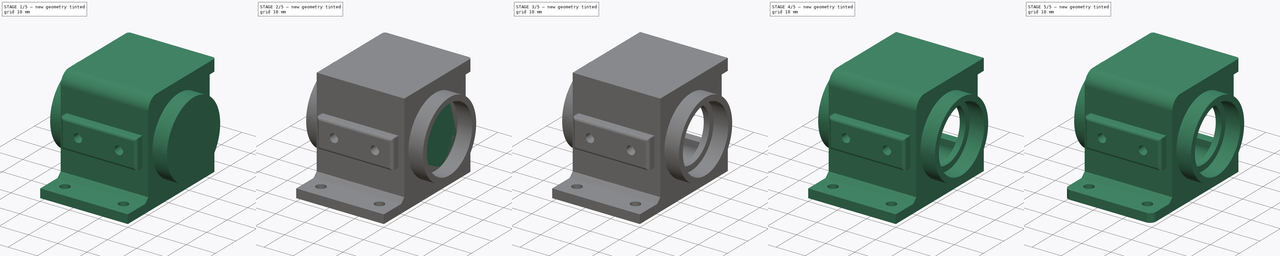
[diagram: build sequence overview — one tinted view per stage of 5, left to right]
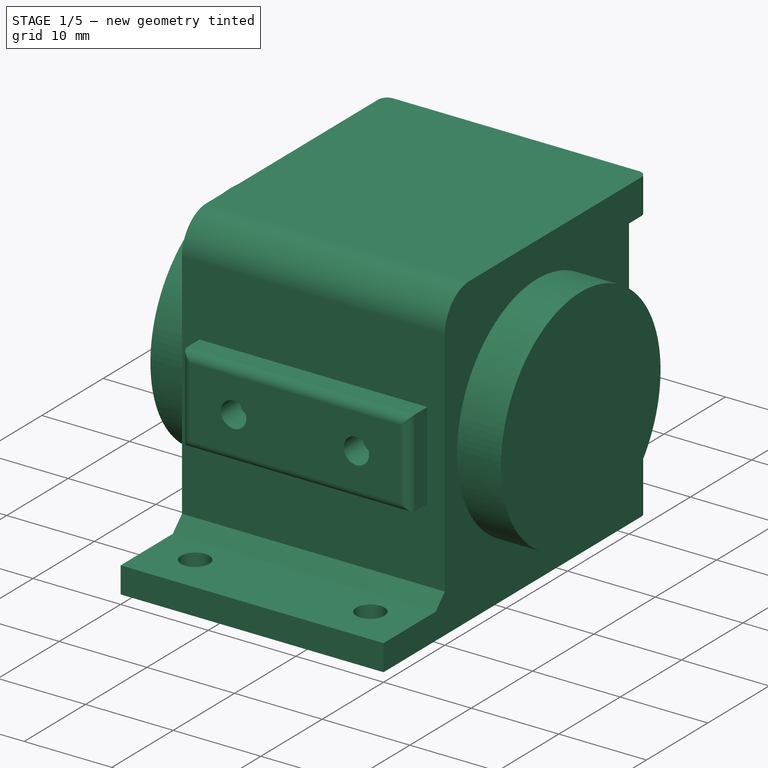
[diagram: stage 1 of 5 — iso view after this stage's code; geometry added in this stage tinted green]
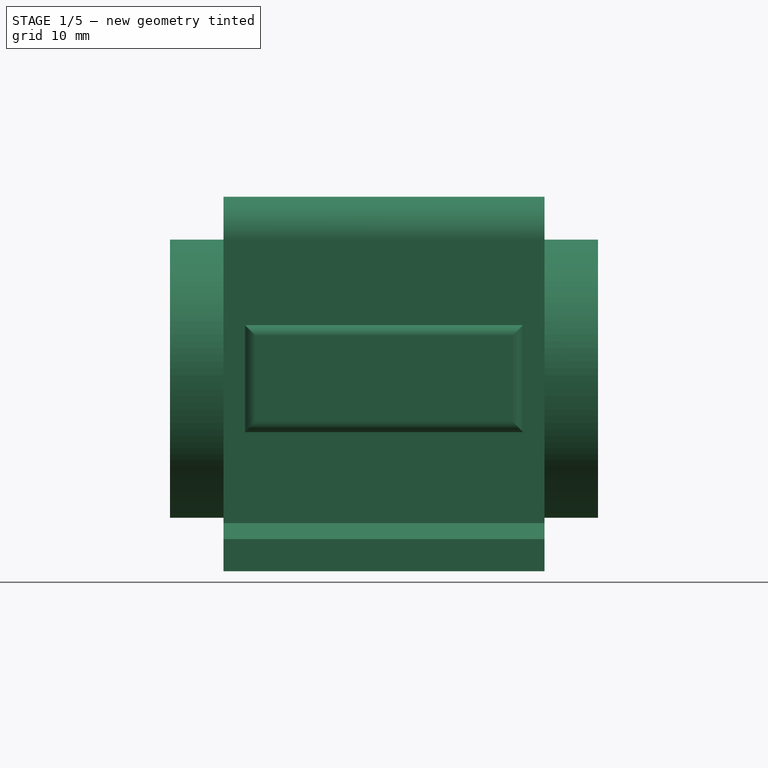
[diagram: stage 1 of 5 — front view after this stage's code; geometry added in this stage tinted green]
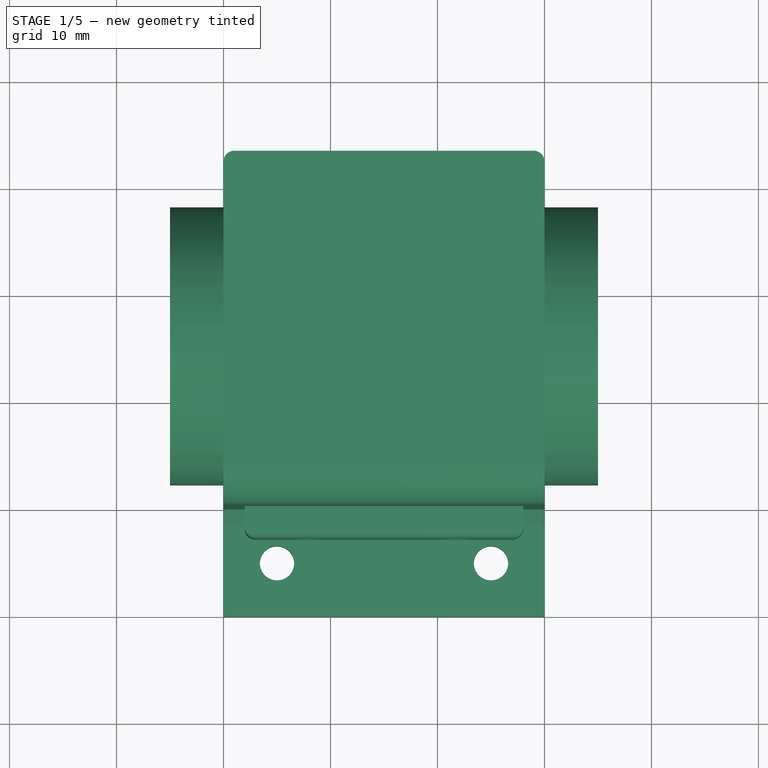
[diagram: stage 1 of 5 — top view after this stage's code; geometry added in this stage tinted green]
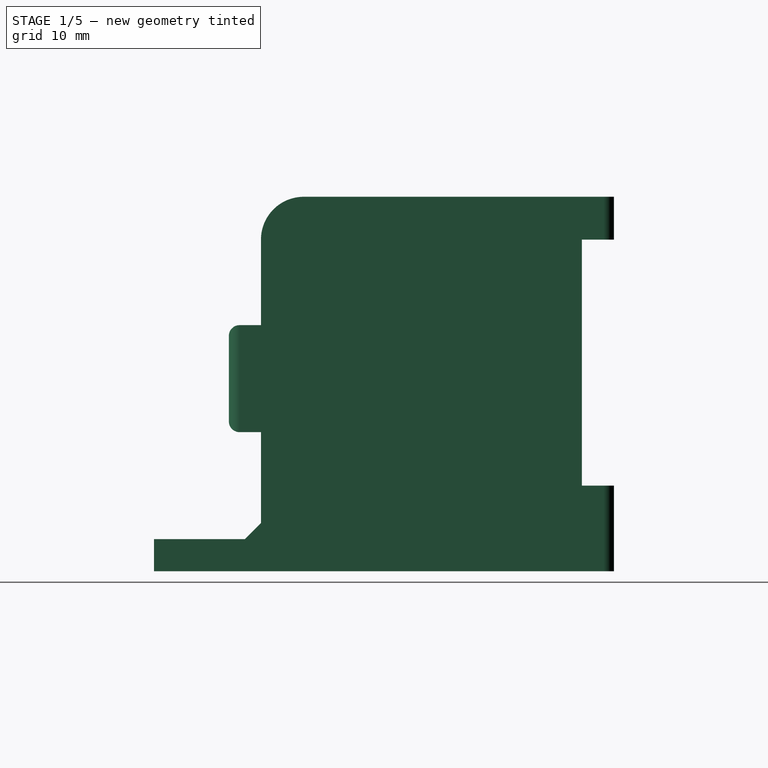
[diagram: stage 1 of 5 — right view after this stage's code; geometry added in this stage tinted green]
FCSTD DOCUMENT  (FreeCAD 0.14R3669 (Git) (Packman))
Label: lightbox2
License: CC-BY 3.0
LicenseURL: http://creativecommons.org/licenses/by/3.0/
objects: PartDesign::Fillet×8, Sketcher::SketchObject×6, PartDesign::Pocket×5, Part::Box×4, Part::MultiFuse×3, Part::Cylinder×1, PartDesign::Chamfer×1, Part::Feature×1, PartDesign::Pad×1
note: 36 computed .brp shape members not serialized (recipe doc carries the construction recipe); baked Part::Feature solids carry a one-line shape summary decoded from their .brp

FEATURE [Part::Cylinder] Cylinder
  Angle = 360
  Height = 40
  Placement = pos=(-5,15,18) rot=(0,1,0;1.5708rad)
  Radius = 13
FEATURE [Part::Box] Box003  label="Cube003"
  Height = 3
  Length = 30
  Placement = pos=(0,-10,0) rot=(0,0,1;0rad)
  Width = 10
FEATURE [Sketcher::SketchObject] Sketch004
  ExternalGeometry = -> [Box003]
  Placement = pos=(0,-10,3) rot=(0,0,1;0rad)
  Support = -> Box003 [Face6]
  sketch-geometry (2):
    g0: Circle CenterX=5 CenterY=5 CenterZ=0 NormalX=0 NormalY=0 NormalZ=1 Radius=1.6
    g1: Circle CenterX=25 CenterY=5 CenterZ=0 NormalX=0 NormalY=0 NormalZ=1 Radius=1.6
  constraints (6):
    c: Equal(g0,g1)
    c: Radius(g0) = 1.6
    c: DistanceX(g-1,g0) = 5
    c: DistanceY(g-1,g0) = 5
    c: DistanceX(g1,g-3) = 5
    c: DistanceY(g1,g-3) = -5
FEATURE [PartDesign::Pocket] Pocket004
  Length = 5
  Placement = pos=(0,-10,0) rot=(0,0,1;0rad)
  Sketch = -> Sketch004
  Type = 1
FEATURE [Part::Feature] Fillet006001  label="Fillet007"
  shape: bbox 40 x 43 x 35 mm, 62 faces (baked)
FEATURE [Sketcher::SketchObject] Sketch005
  ExternalGeometry = -> [Fillet006001]
  Placement = pos=(0,0,0) rot=(1,0,0;1.5708rad)
  Support = -> Fillet006001 [Face51]
  sketch-geometry (11):
    g0: LineSegment StartX=2 StartY=23 StartZ=0 EndX=28 EndY=23 EndZ=0
    g1: LineSegment StartX=28 StartY=23 StartZ=0 EndX=28 EndY=13 EndZ=0
    g2: LineSegment StartX=28 StartY=13 StartZ=0 EndX=2 EndY=13 EndZ=0
    g3: LineSegment StartX=2 StartY=13 StartZ=0 EndX=2 EndY=23 EndZ=0
    g4: Circle CenterX=8 CenterY=18 CenterZ=0 NormalX=0 NormalY=0 NormalZ=1 Radius=1.45
    g5: Circle CenterX=22 CenterY=18 CenterZ=0 NormalX=0 NormalY=0 NormalZ=1 Radius=1.45
    g6: LineSegment [constr] StartX=8 StartY=18 StartZ=0 EndX=22 EndY=18 EndZ=0
    g7: LineSegment [constr] StartX=8 StartY=18 StartZ=0 EndX=2 EndY=23 EndZ=0
    g8: LineSegment [constr] StartX=8 StartY=18 StartZ=0 EndX=2 EndY=13 EndZ=0
    g9: LineSegment [constr] StartX=22 StartY=18 StartZ=0 EndX=28 EndY=23 EndZ=0
    g10: LineSegment [constr] StartX=28 StartY=13 StartZ=0 EndX=22 EndY=18 EndZ=0
  constraints (28):
    c: Coincident(g0,g1)
    c: Coincident(g1,g2)
    c: Coincident(g2,g3)
    c: Coincident(g3,g0)
    c: Horizontal(g0)
    c: Horizontal(g2)
    c: Vertical(g1)
    c: Vertical(g3)
    c: Equal(g5,g4)
    c: Radius(g4) = 1.45
    c: Coincident(g6,g4)
    c: Coincident(g6,g5)
    c: Coincident(g7,g4)
    c: Coincident(g7,g0)
    c: Coincident(g8,g4)
    c: Coincident(g8,g2)
    c: Coincident(g9,g5)
    c: Coincident(g9,g0)
    c: Coincident(g10,g1)
    c: Coincident(g10,g9)
    c: Equal(g8,g7)
    c: Equal(g10,g9)
    c: Equal(g9,g7)
    c: DistanceY(g-1,g4) = 18
    c: DistanceX(g-1,g4) = 8
    c: DistanceX(g5,g-3) = 8
    c: DistanceY(g1) = -10
    c: DistanceX(g4,g2) = -6
FEATURE [PartDesign::Pad] Pad
  Length = 3
  Length2 = 100
  Sketch = -> Sketch005
  Type = 0
FEATURE [PartDesign::Fillet] Fillet006002
  Base = -> Pad [Edge3,Edge1,Edge4,Edge2]
  Radius = 1
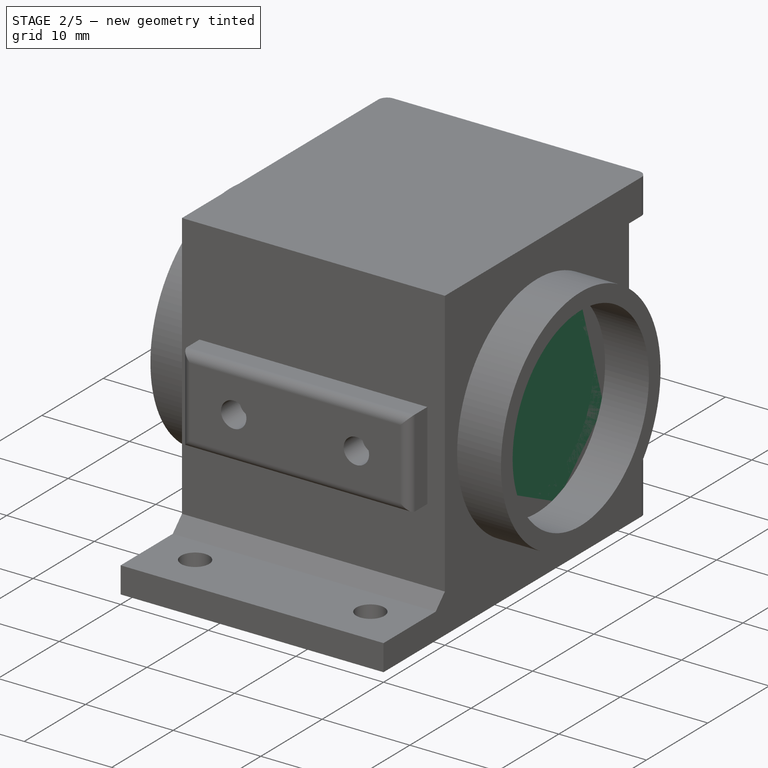
[diagram: stage 2 of 5 — iso view after this stage's code; geometry added in this stage tinted green]
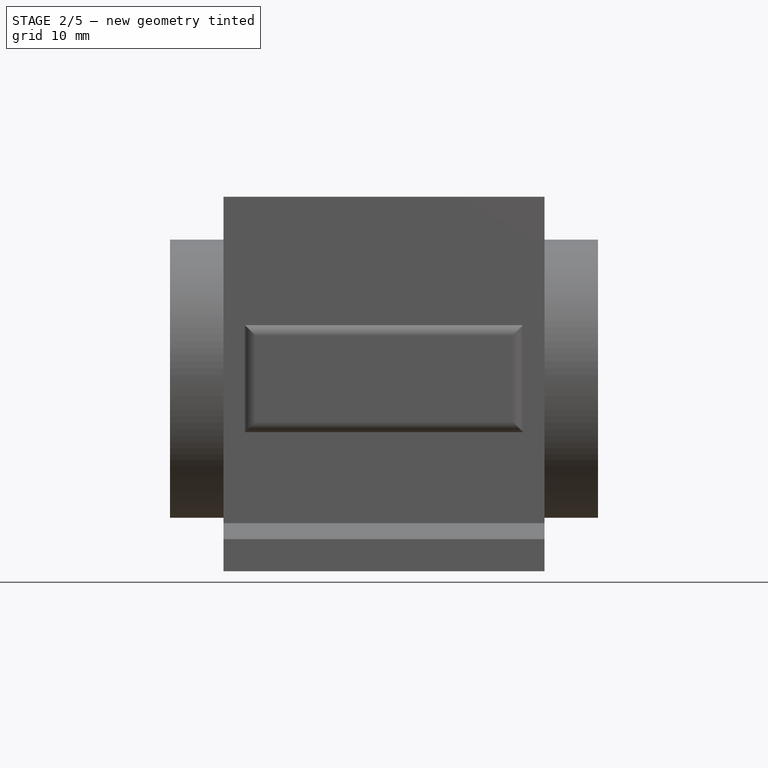
[diagram: stage 2 of 5 — front view after this stage's code; geometry added in this stage tinted green]
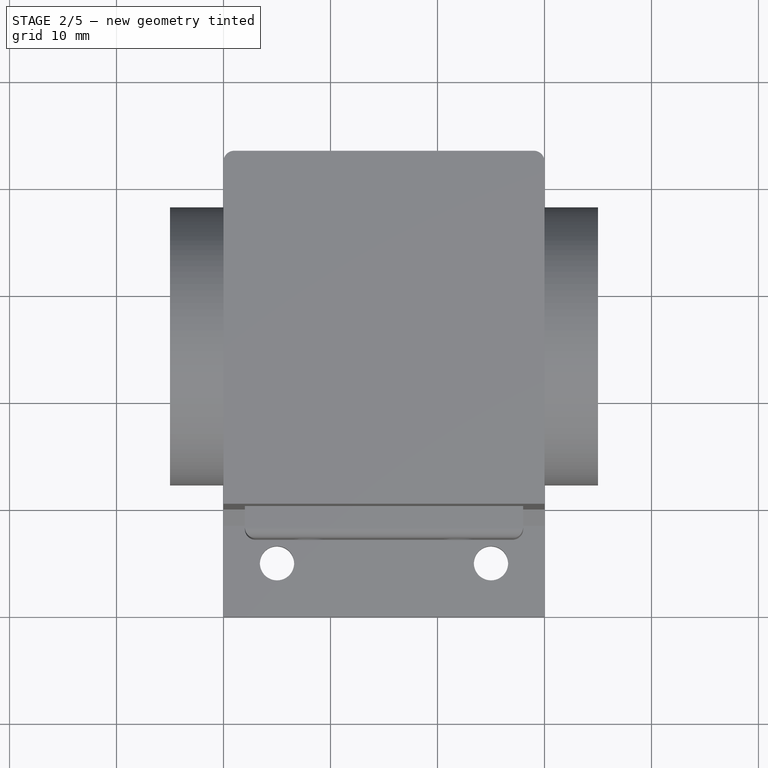
[diagram: stage 2 of 5 — top view after this stage's code; geometry added in this stage tinted green]
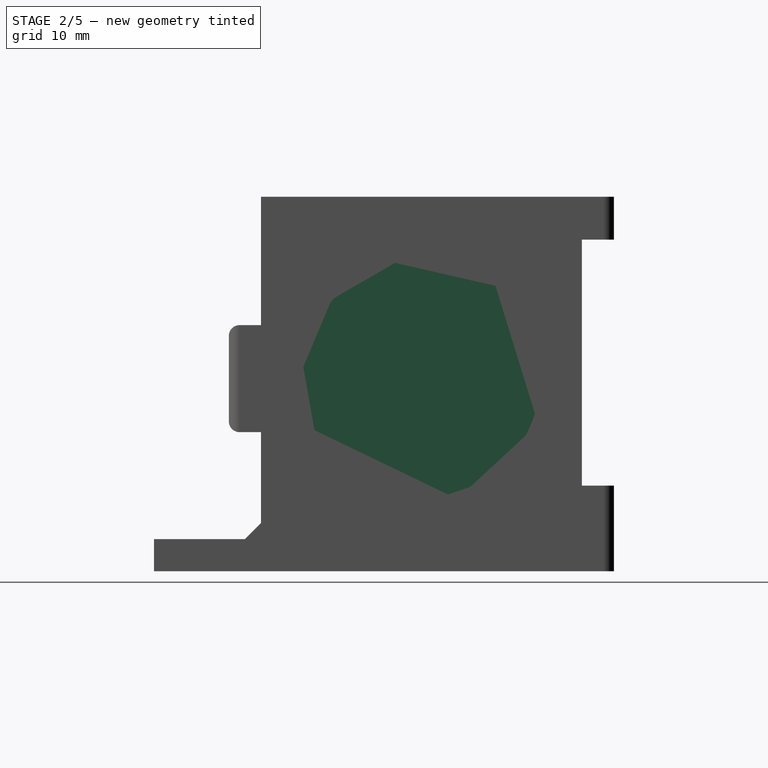
[diagram: stage 2 of 5 — right view after this stage's code; geometry added in this stage tinted green]
FEATURE [Part::Box] Box  label="Cube"
  Height = 35
  Length = 30
  Width = 30
FEATURE [Part::MultiFuse] Fusion
  Shapes = -> [Cylinder,Box]
FEATURE [Sketcher::SketchObject] Sketch
  ExternalGeometry = -> [Fusion]
  Placement = pos=(35,0,0) rot=(0.57735,0.57735,0.57735;2.0944rad)
  Support = -> Fusion [Face1]
  sketch-geometry (2):
    g0: Circle CenterX=15 CenterY=18 CenterZ=0 NormalX=0 NormalY=0 NormalZ=1 Radius=11.1
    g1: GeomPoint [constr] X=15 Y=18 Z=0
  constraints (3):
    c: Radius(g0) = 11.1
    c: Coincident(g1,g-3)
    c: Coincident(g1,g0)
FEATURE [PartDesign::Pocket] Pocket
  Length = 5
  Sketch = -> Sketch
  Type = 0
FEATURE [Sketcher::SketchObject] Sketch001
  ExternalGeometry = -> [Pocket]
  Placement = pos=(-5,0,0) rot=(-0.57735,0.57735,0.57735;4.18879rad)
  Support = -> Pocket [Face12]
  sketch-geometry (1):
    g0: Circle CenterX=-15 CenterY=18 CenterZ=0 NormalX=0 NormalY=0 NormalZ=1 Radius=11.1
  constraints (2):
    c: Radius(g0) = 11.1
    c: Coincident(g0,g-3)
FEATURE [PartDesign::Pocket] Pocket001
  Length = 5
  Sketch = -> Sketch001
  Type = 0
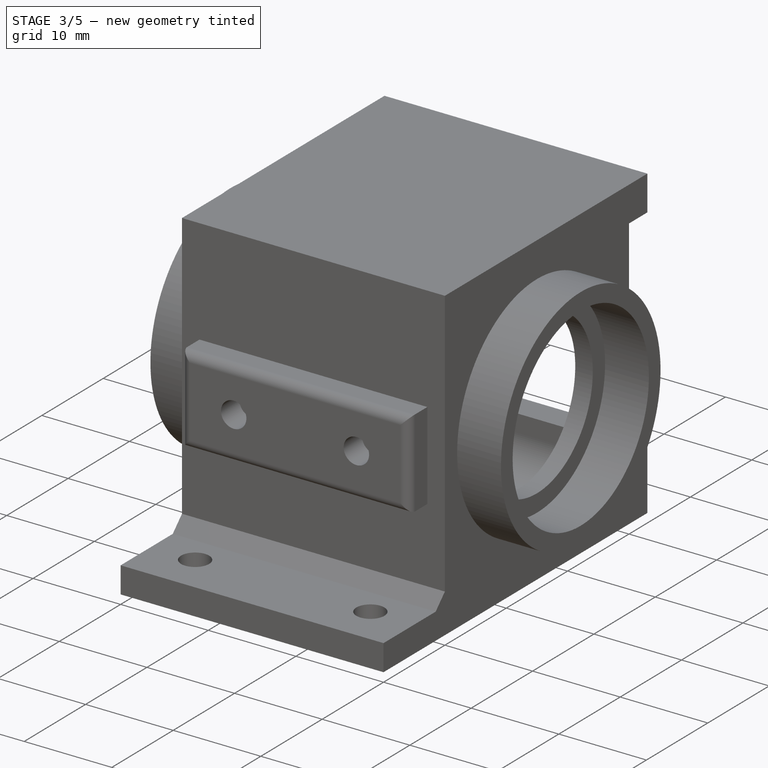
[diagram: stage 3 of 5 — iso view after this stage's code; geometry added in this stage tinted green]
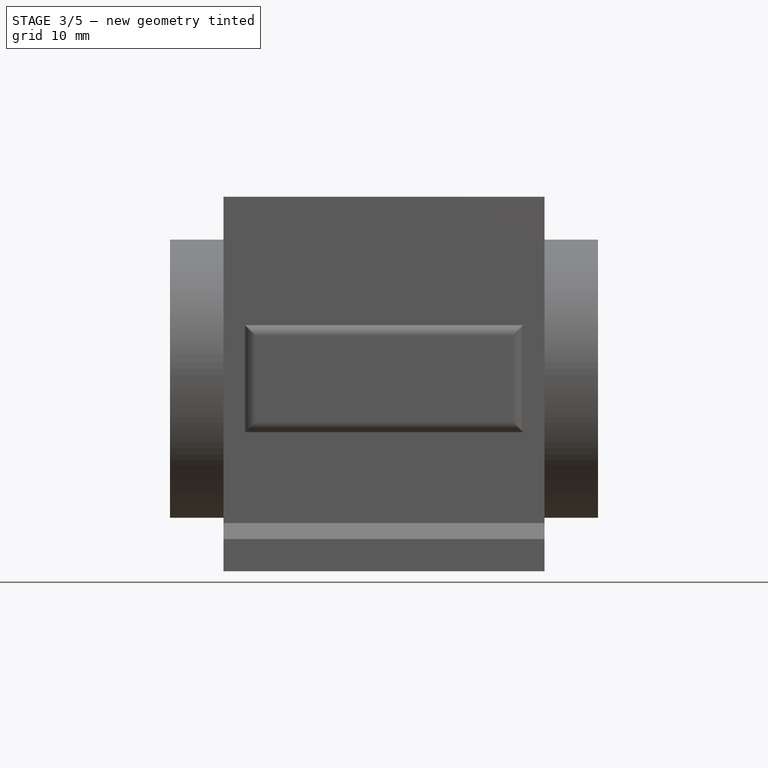
[diagram: stage 3 of 5 — front view after this stage's code; geometry added in this stage tinted green]
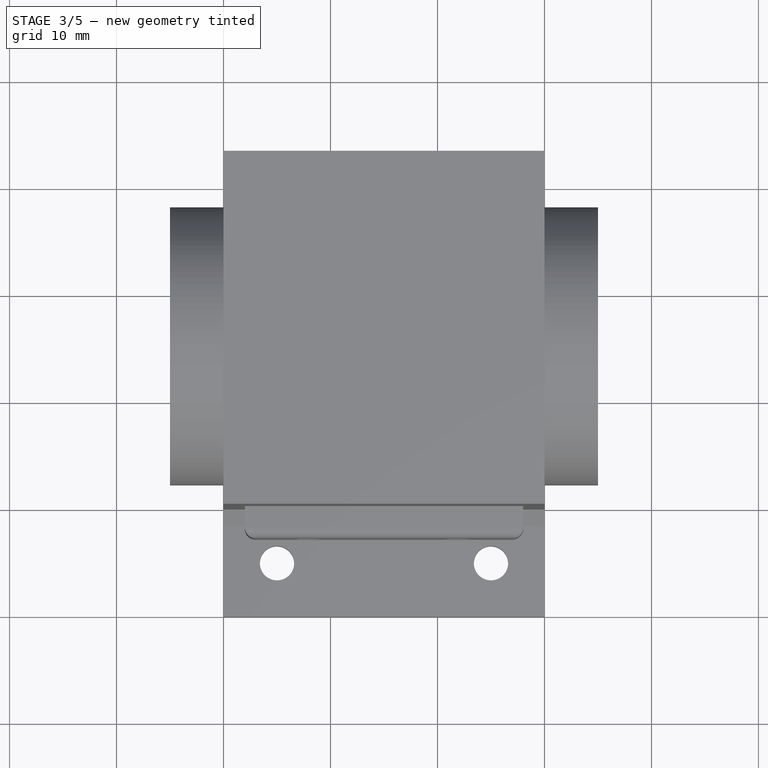
[diagram: stage 3 of 5 — top view after this stage's code; geometry added in this stage tinted green]
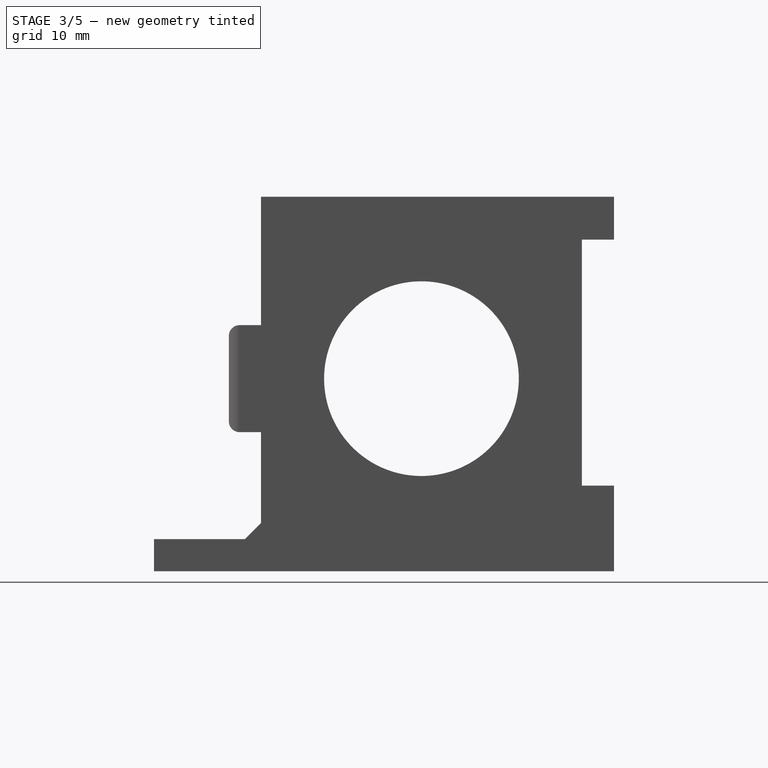
[diagram: stage 3 of 5 — right view after this stage's code; geometry added in this stage tinted green]
FEATURE [Sketcher::SketchObject] Sketch002
  ExternalGeometry = -> [Pocket001]
  Placement = pos=(0,0,0) rot=(-0.57735,0.57735,0.57735;4.18879rad)
  Support = -> Pocket001 [Face14]
  sketch-geometry (1):
    g0: Circle CenterX=-15 CenterY=18 CenterZ=0 NormalX=0 NormalY=0 NormalZ=1 Radius=9.1
  constraints (2):
    c: Coincident(g0,g-3)
    c: Radius(g0) = 9.1
FEATURE [PartDesign::Pocket] Pocket002
  Length = 5
  Sketch = -> Sketch002
  Type = 1
FEATURE [Sketcher::SketchObject] Sketch003
  ExternalGeometry = -> [Pocket002]
  Placement = pos=(0,30,0) rot=(0,0.707107,0.707107;3.14159rad)
  Support = -> Pocket002 [Face9]
  sketch-geometry (8):
    g0: LineSegment StartX=-28 StartY=2 StartZ=0 EndX=-2 EndY=2 EndZ=0
    g1: LineSegment StartX=-2 StartY=2 StartZ=0 EndX=-2 EndY=33 EndZ=0
    g2: LineSegment StartX=-2 StartY=33 StartZ=0 EndX=-28 EndY=33 EndZ=0
    g3: LineSegment StartX=-28 StartY=33 StartZ=0 EndX=-28 EndY=2 EndZ=0
    g4: LineSegment [constr] StartX=-28 StartY=2 StartZ=0 EndX=-30 EndY=0 EndZ=0
    g5: LineSegment [constr] StartX=-2 StartY=2 StartZ=0 EndX=0 EndY=0 EndZ=0
    g6: LineSegment [constr] StartX=-28 StartY=33 StartZ=0 EndX=-30 EndY=35 EndZ=0
    g7: LineSegment [constr] StartX=-2 StartY=33 StartZ=0 EndX=0 EndY=35 EndZ=0
  constraints (23):
    c: Coincident(g0,g1)
    c: Coincident(g1,g2)
    c: Coincident(g2,g3)
    c: Coincident(g3,g0)
    c: Horizontal(g0)
    c: Horizontal(g2)
    c: Vertical(g1)
    c: Vertical(g3)
    c: Coincident(g4,g0)
    c: Coincident(g5,g0)
    c: Coincident(g5,g-1)
    c: Coincident(g6,g2)
    c: Coincident(g7,g1)
    c: Coincident(g7,g-3)
    c: Equal(g6,g7)
    c: Equal(g7,g5)
    c: Equal(g5,g4)
    c: Equal(g0,g2)
    c: Equal(g3,g1)
    c: Coincident(g6,g-3)
    c: Coincident(g4,g-4)
    c: DistanceX(g4,g0) = 2
    c: DistanceY(g0,g4) = -2
FEATURE [PartDesign::Pocket] Pocket003
  Length = 28
  Sketch = -> Sketch003
  Type = 0
FEATURE [Part::Box] Box001  label="Cube001"
  Height = 8
  Length = 30
  Placement = pos=(0,30,0) rot=(0,0,1;0rad)
  Width = 3
FEATURE [Part::Box] Box002  label="Cube002"
  Height = 4
  Length = 30
  Placement = pos=(0,30,31) rot=(0,0,1;0rad)
  Width = 3
FEATURE [PartDesign::Fillet] Fillet
  Base = -> Pocket003 [Edge30,Edge35]
  Radius = 3
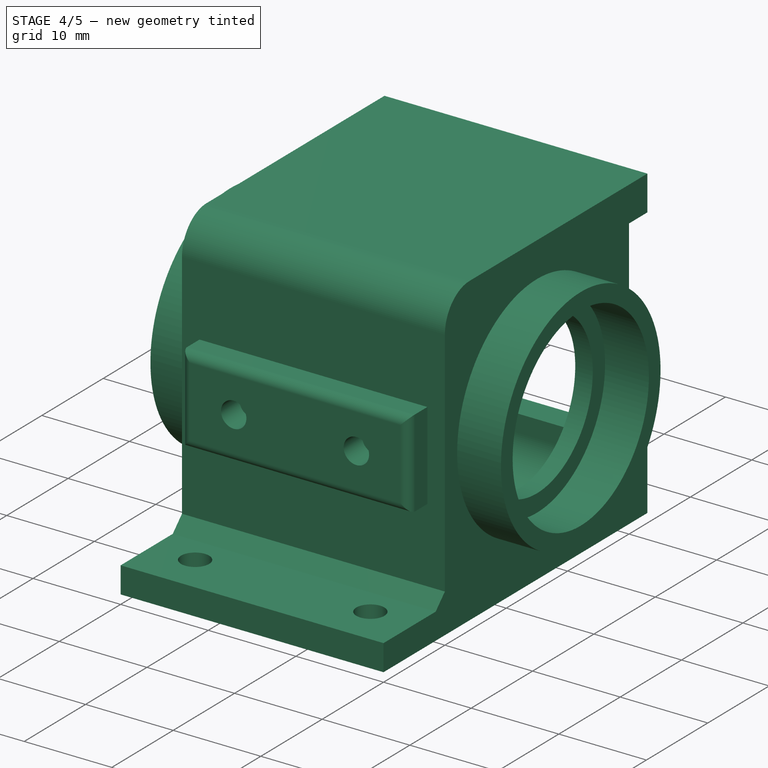
[diagram: stage 4 of 5 — iso view after this stage's code; geometry added in this stage tinted green]
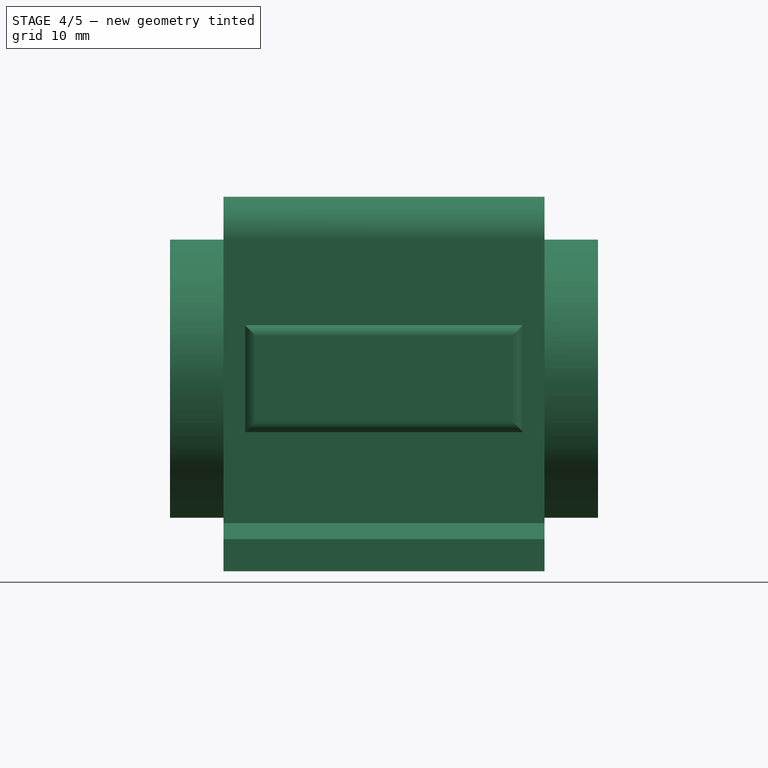
[diagram: stage 4 of 5 — front view after this stage's code; geometry added in this stage tinted green]
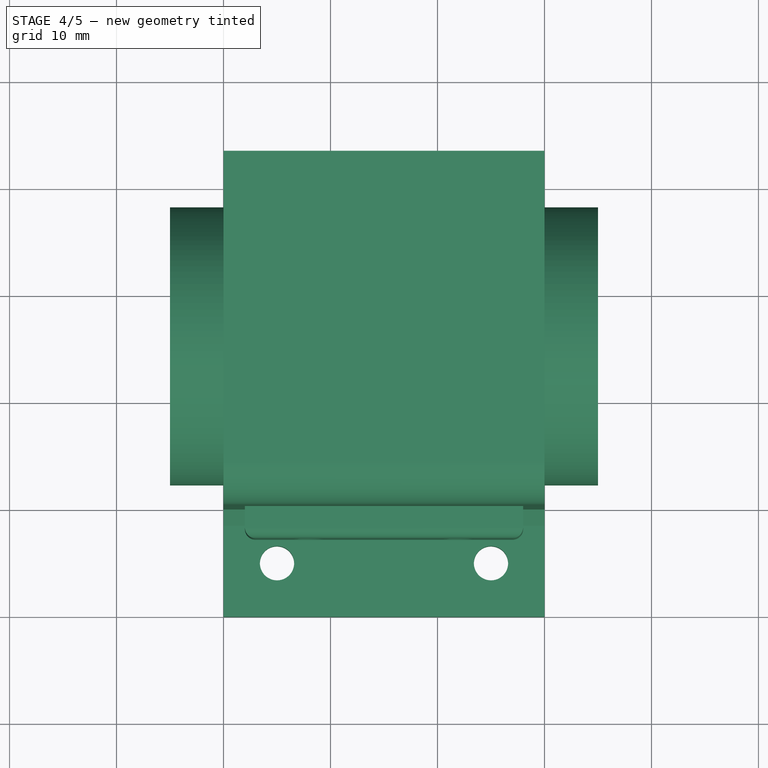
[diagram: stage 4 of 5 — top view after this stage's code; geometry added in this stage tinted green]
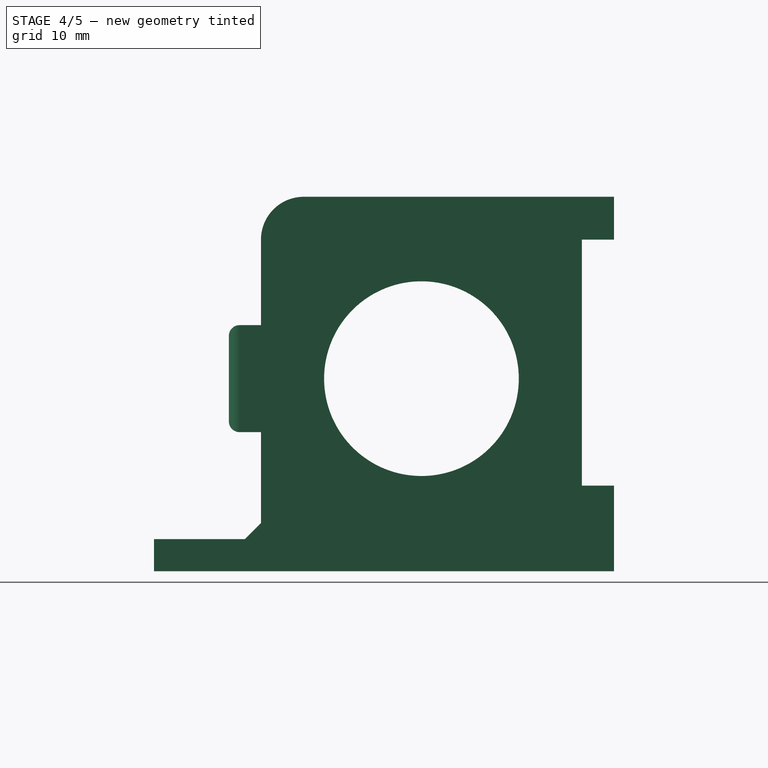
[diagram: stage 4 of 5 — right view after this stage's code; geometry added in this stage tinted green]
FEATURE [Part::MultiFuse] Fusion001
  Shapes = -> [Box002,Box001,Fillet]
FEATURE [PartDesign::Fillet] Fillet001
  Base = -> Fusion001 [Edge65]
  Radius = 4
FEATURE [PartDesign::Fillet] Fillet002
  Base = -> Fillet001 [Edge29]
  Radius = 1.5
FEATURE [PartDesign::Fillet] Fillet003
  Base = -> Fillet002 [Edge70]
  Radius = 4
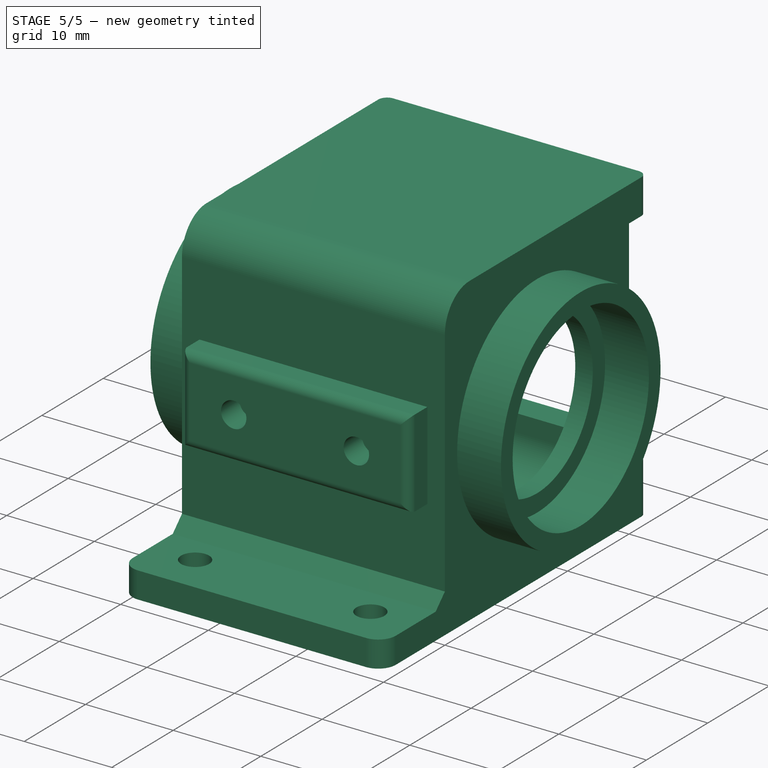
[diagram: stage 5 of 5 — iso view after this stage's code; geometry added in this stage tinted green]
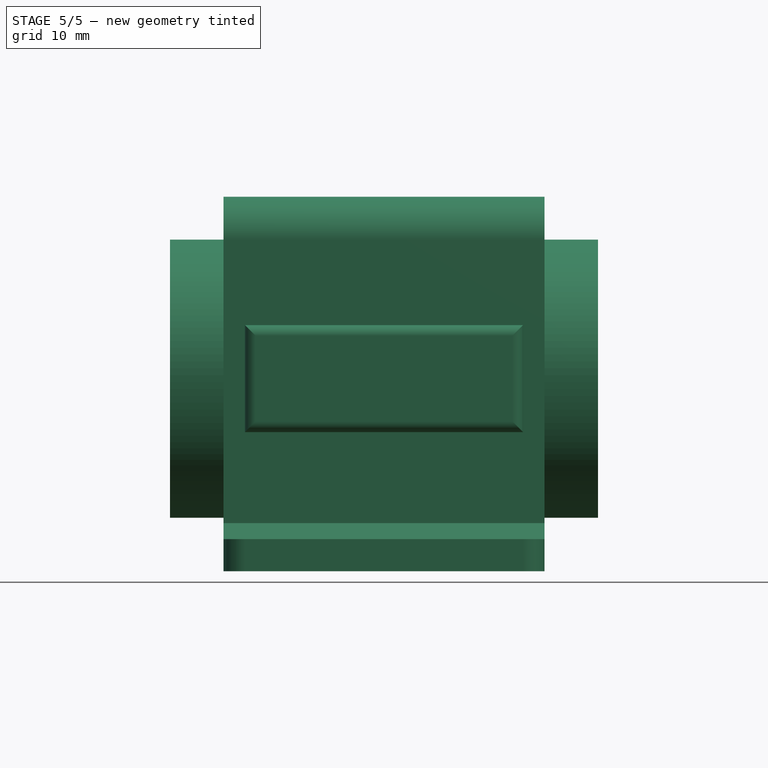
[diagram: stage 5 of 5 — front view after this stage's code; geometry added in this stage tinted green]
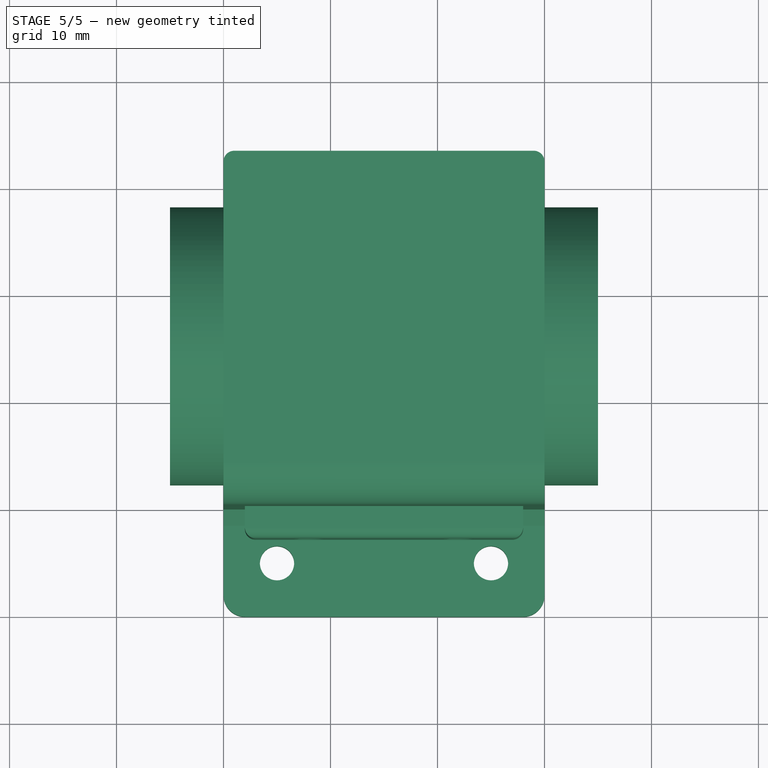
[diagram: stage 5 of 5 — top view after this stage's code; geometry added in this stage tinted green]
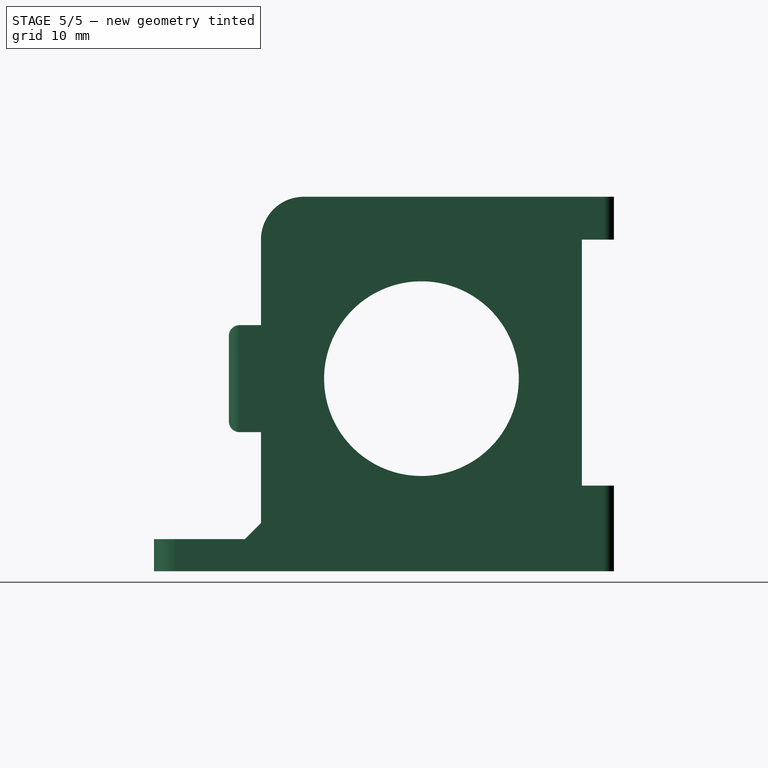
[diagram: stage 5 of 5 — right view after this stage's code; geometry added in this stage tinted green]
FEATURE [Part::MultiFuse] Fusion002
  Shapes = -> [Fillet003,Pocket004]
FEATURE [PartDesign::Chamfer] Chamfer
  Base = -> Fusion002 [Edge13]
  Size = 1.5
FEATURE [PartDesign::Fillet] Fillet004
  Base = -> Chamfer [Edge3,Edge15]
  Radius = 2
FEATURE [PartDesign::Fillet] Fillet005
  Base = -> Fillet004 [Edge104,Edge82]
  Radius = 1
FEATURE [PartDesign::Fillet] Fillet006
  Base = -> Fillet005 [Edge114,Edge112,Edge46,Edge49]
  Radius = 1
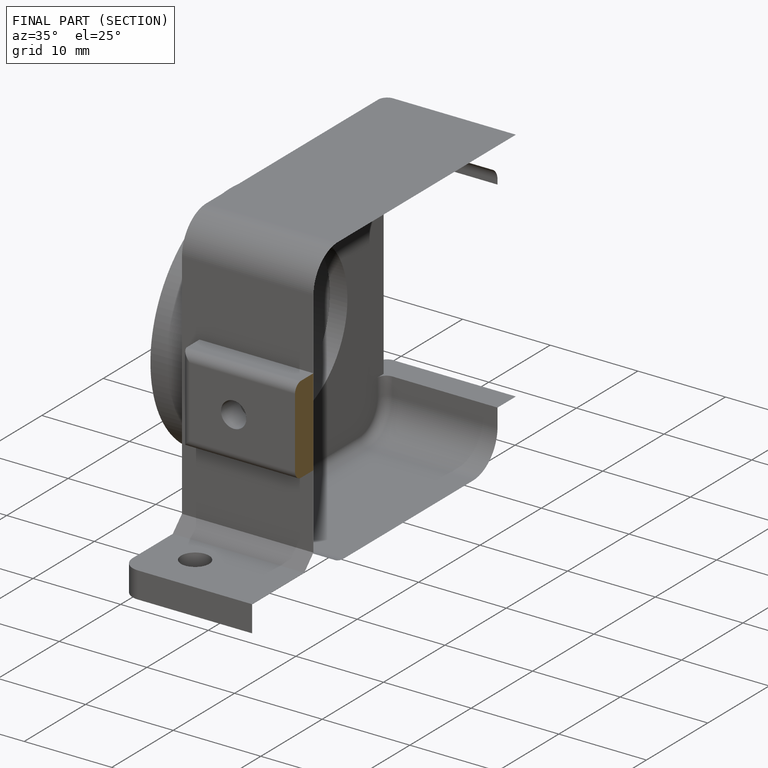
[diagram: finished part — half-section view (interior)]
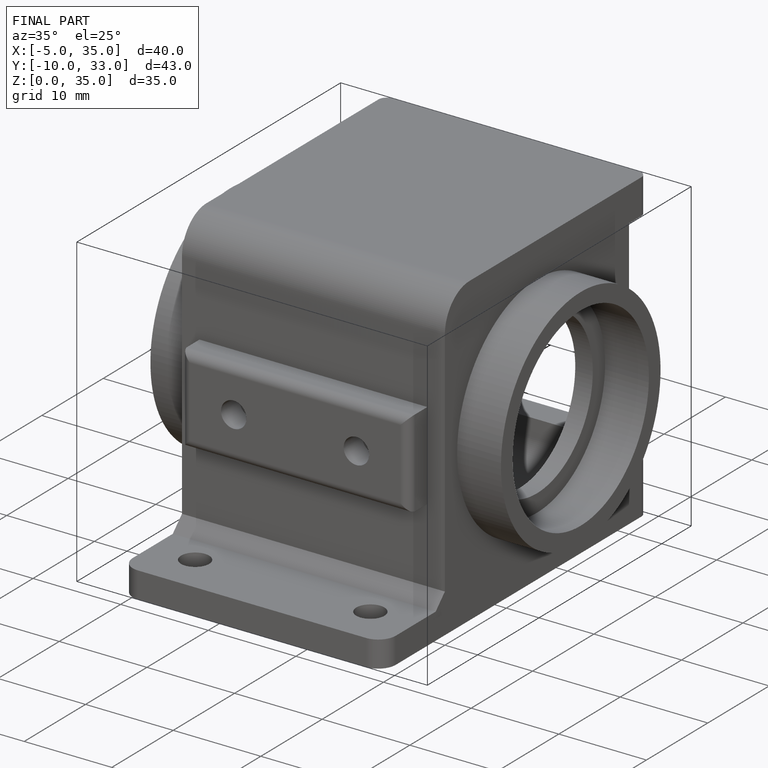
[diagram: finished part — iso view with bounding-box wireframe]
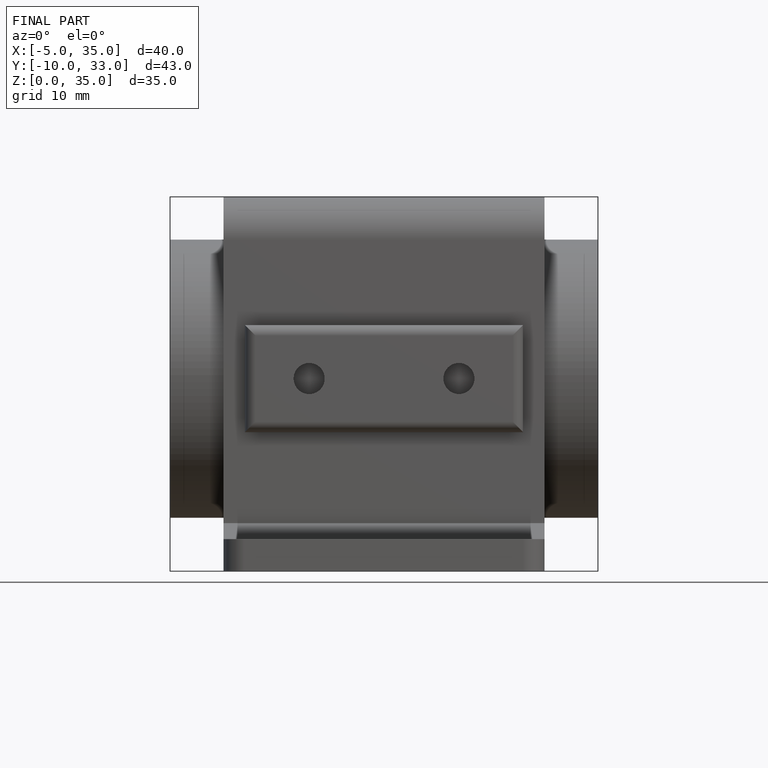
[diagram: finished part — front view with bounding-box wireframe]
